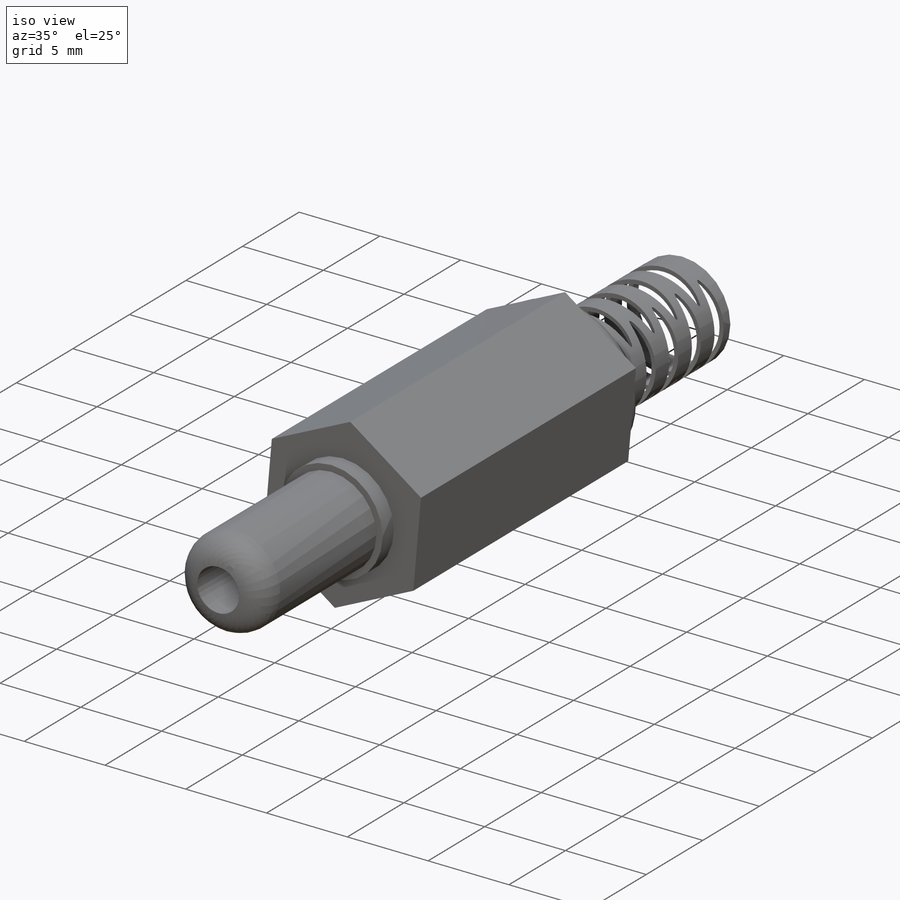
[diagram: iso view]
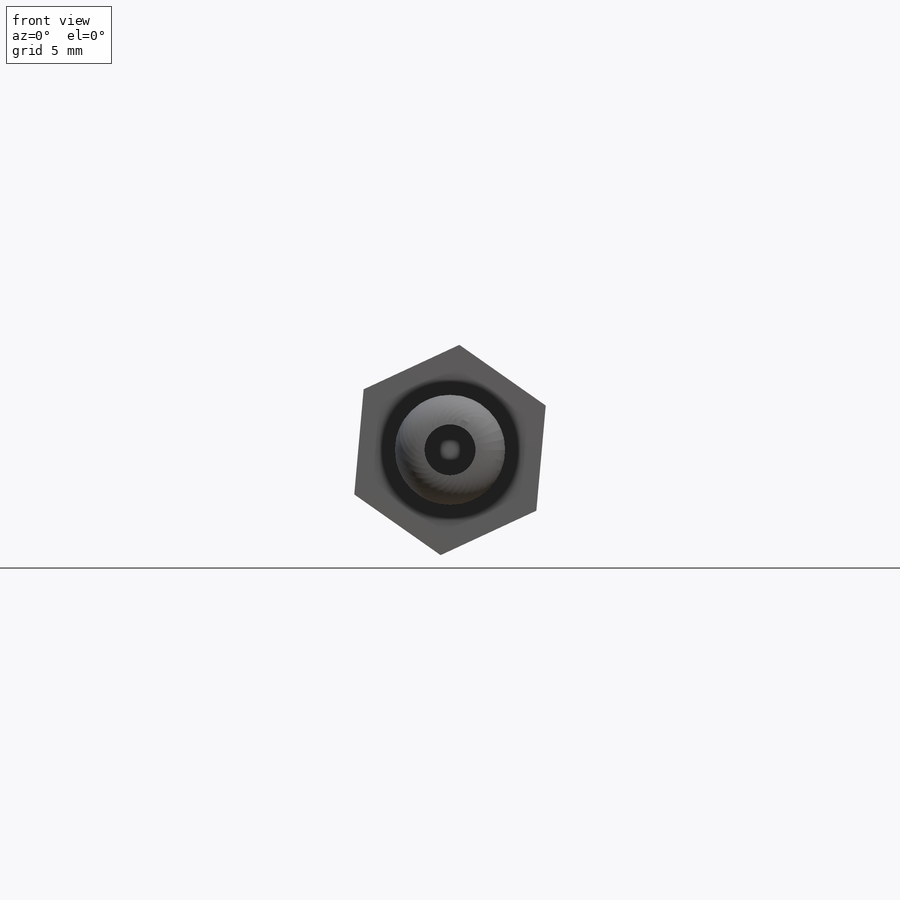
[diagram: front view]
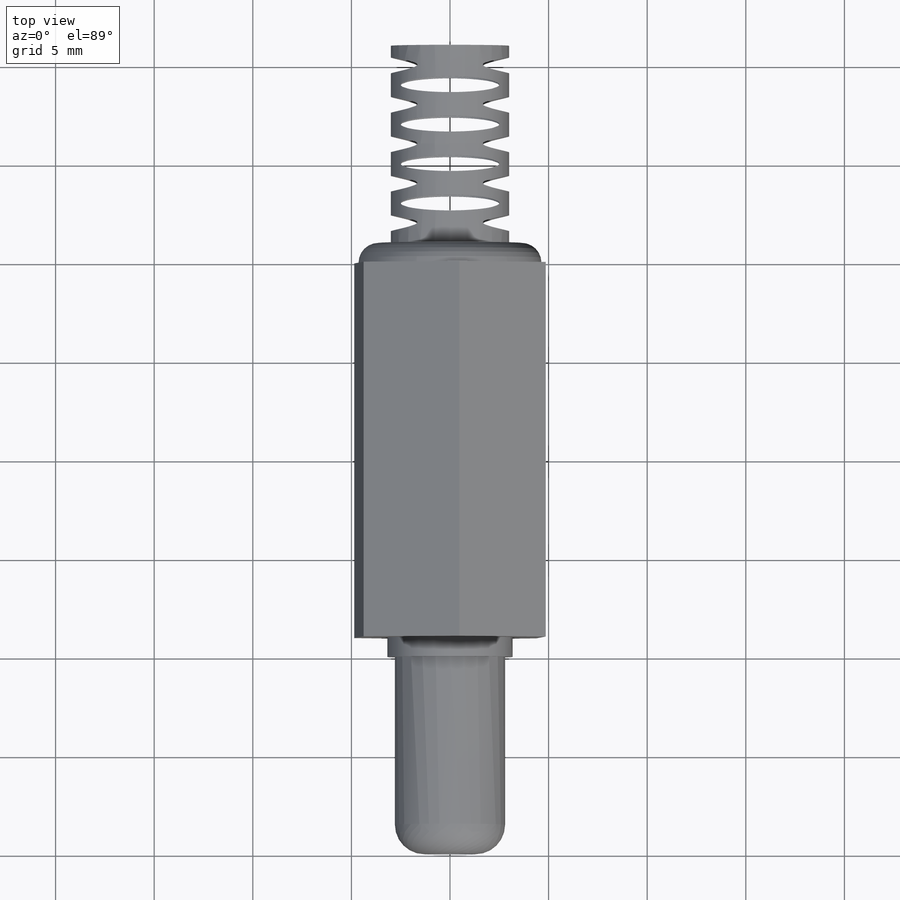
[diagram: top view]
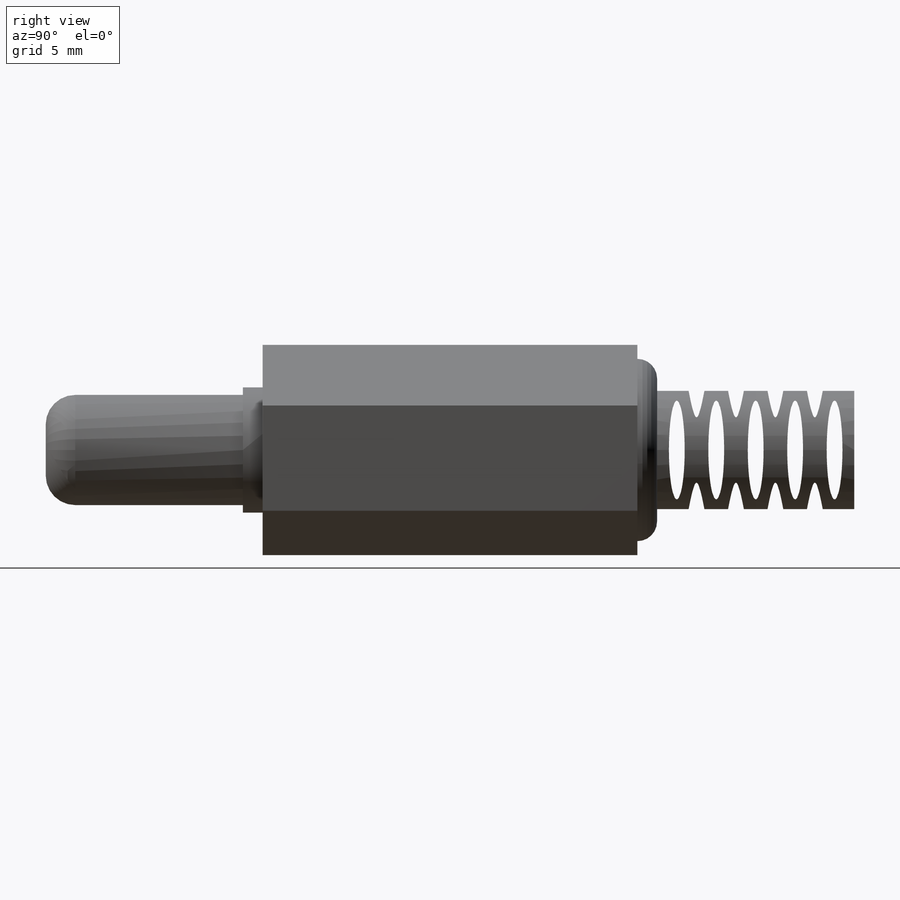
[diagram: right view]
SOLIDWORKS PART (.sldprt)
format: sldprt  version: not decoded by parser v0  size: 369,152 bytes
history: native  units: mm
features: sketch x9, extrude x5, cut_extrude x4, fillet x2, pattern_linear x2, material x1 (+13 scaffold rows collapsed)
feature tree (36):
  scaffold x13  (default folders/planes/origin — collapsed)
  material  "Material <not specified>"
  sketch  "Sketch1"  dims[D1=5.588mm]
  extrude  "Boss-Extrude1"  Depth=10mm
  fillet  "Fillet1"  Radius=1.5mm
  sketch  "Sketch2"  dims[D1=2.588mm]
  cut_extrude  "Cut-Extrude1"  [1 undecoded]
  sketch  "Sketch3"  dims[D1=6.35mm]
  extrude  "Boss-Extrude2"  Depth=1mm
  sketch  "Sketch4"  dims[D1=9.271mm]
  extrude  "Boss-Extrude3"  Depth=19mm
  sketch  "Sketch5"  dims[D1=9.271mm]
  extrude  "Boss-Extrude4"  Depth=1mm
  fillet  "Fillet2"  Radius=1mm
  sketch  "Sketch6"  dims[D1=6.0mm]
  extrude  "Boss-Extrude5"  Depth=10mm
  sketch  "Sketch7"  dims[D1=5.5mm]
  cut_extrude  "Cut-Extrude2"  Depth=10mm
  sketch  "Sketch8"  dims[D1=0.8mm D2=5.0mm D3=8.0mm]
  cut_extrude  "Cut-Extrude3"  [1 undecoded]
  pattern_linear  "LPattern1"  Count1=4 Count2=1 Spacing1=2mm Spacing2=10mm
  sketch  "Sketch9"  dims[D1=0.8mm D2=5.0mm D3=9.0mm]
  cut_extrude  "Cut-Extrude4"  [1 undecoded]
  pattern_linear  "LPattern2"  Count1=5 Count2=1 Spacing1=2mm Spacing2=10mm
decode coverage: 19 of 22 modeling features carry decoded parameters
note: 3 parameter values undecoded
summary: no parameter record found for 3 features
note: suppression state not decoded; provenance and decode notes live in map.json
